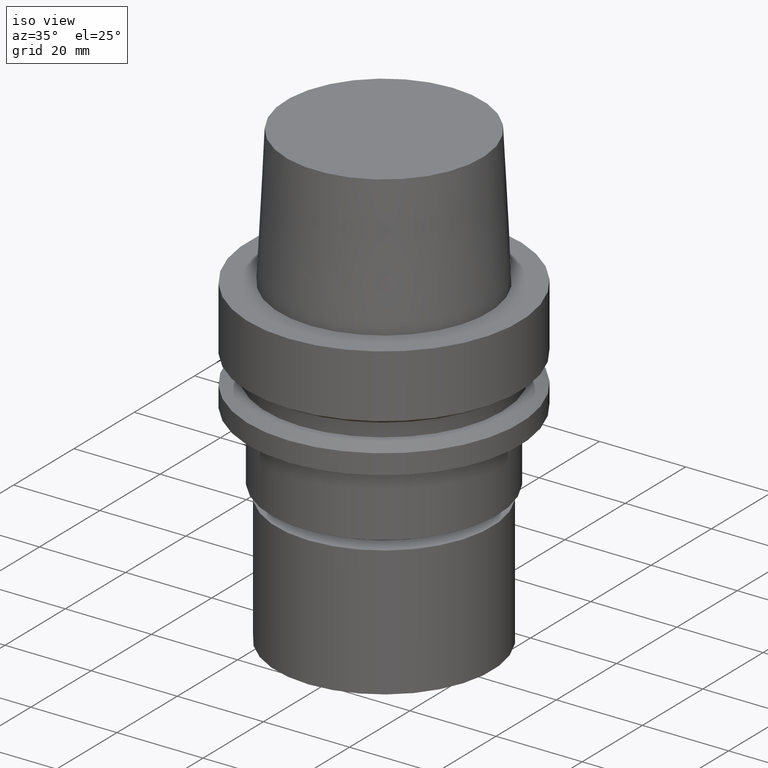
[diagram: clean part render]
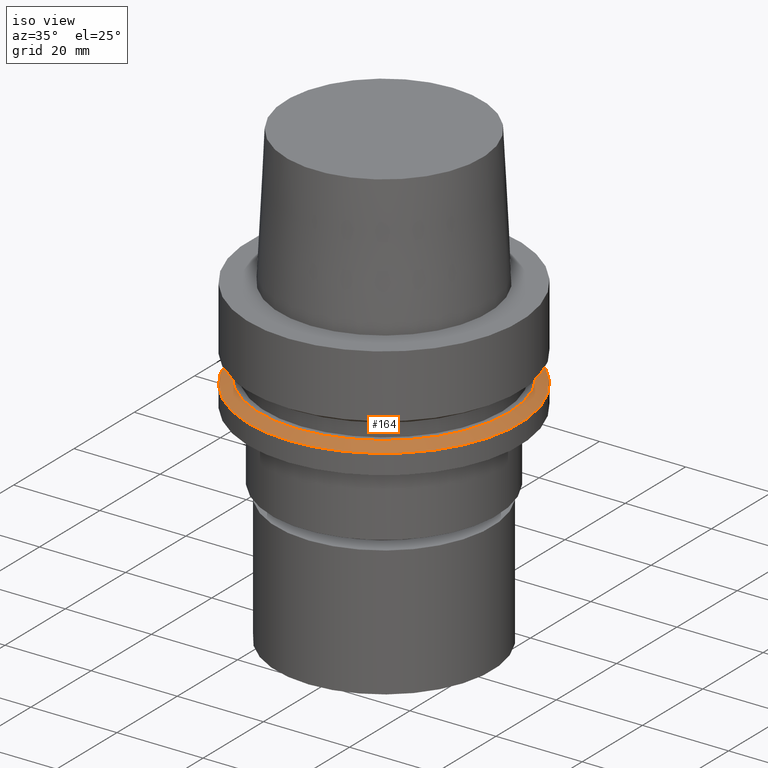
[diagram: same view with one face highlighted and labeled with its STEP entity id]
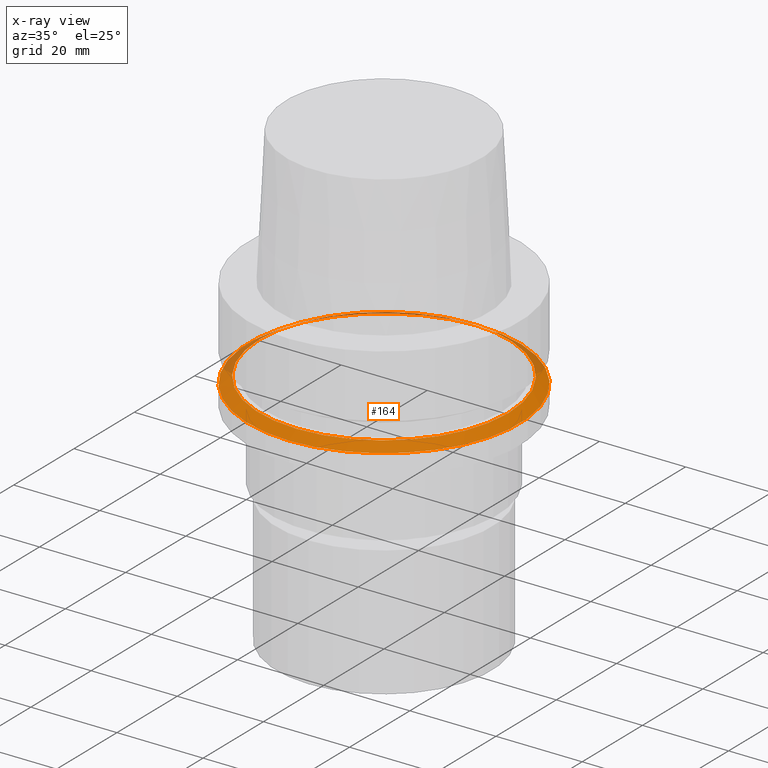
[diagram: x-ray of the same camera — body ghosted, the highlighted face saturated]
A machine part, iso view. The second image highlights one B-rep face of the part: STEP entity #164.
The next image is the same camera in x-ray: the body ghosted, the highlighted face saturated — about 12% of this face is hidden behind the body in this view.
In plain terms, the highlighted conical surface has half-angle 60 deg.
Its self-contained STEP definition (entity closure, byte-faithful):
#150=EDGE_CURVE('Unnamed[1]',#315,#315,#316,.T.);
#155=EDGE_CURVE('Unnamed[1]',#323,#323,#324,.T.);
#164=ADVANCED_FACE('Unnamed[1]',(#336,#337),#338,.T.);
#315=VERTEX_POINT('',#519);
#316=CIRCLE('',#520,28.8975952641919);
#323=VERTEX_POINT('',#529);
#324=CIRCLE('',#530,31.5);
#336=FACE_BOUND('',#545,.T.);
#337=FACE_BOUND('',#546,.T.);
#338=CONICAL_SURFACE('',#547,30.1987976320959,1.04719755119657);
#519=CARTESIAN_POINT('',(1.21699275665268E-015,28.8975952641919,-19.875));
#520=AXIS2_PLACEMENT_3D('',#703,#704,#705);
#529=CARTESIAN_POINT('',(1.30899429078397E-015,31.5,-21.3774990747592));
#530=AXIS2_PLACEMENT_3D('',#712,#713,#714);
#545=EDGE_LOOP('',(#727));
#546=EDGE_LOOP('',(#728));
#547=AXIS2_PLACEMENT_3D('',#729,#730,#731);
#703=CARTESIAN_POINT('',(1.21699275665268E-015,2.43398551330536E-015,-19.875));
#704=DIRECTION('',(-6.12323399573677E-017,-1.22464679914735E-016,1.0));
#705=DIRECTION('',(-1.23259516440783E-032,1.0,1.22464679914735E-016));
#712=CARTESIAN_POINT('',(1.30899429078397E-015,2.61798858156794E-015,-21.3774990747592));
#713=DIRECTION('',(-6.12323399573677E-017,-1.22464679914735E-016,1.0));
#714=DIRECTION('',(-1.23259516440783E-032,1.0,1.22464679914735E-016));
#727=ORIENTED_EDGE('',*,*,#150,.F.);
#728=ORIENTED_EDGE('',*,*,#155,.T.);
#729=CARTESIAN_POINT('',(1.26299352371833E-015,2.52598704743665E-015,-20.6262495373796));
#730=DIRECTION('',(6.12323399573677E-017,1.22464679914735E-016,-1.0));
#731=DIRECTION('',(-1.23259516440783E-032,1.0,1.22464679914735E-016));